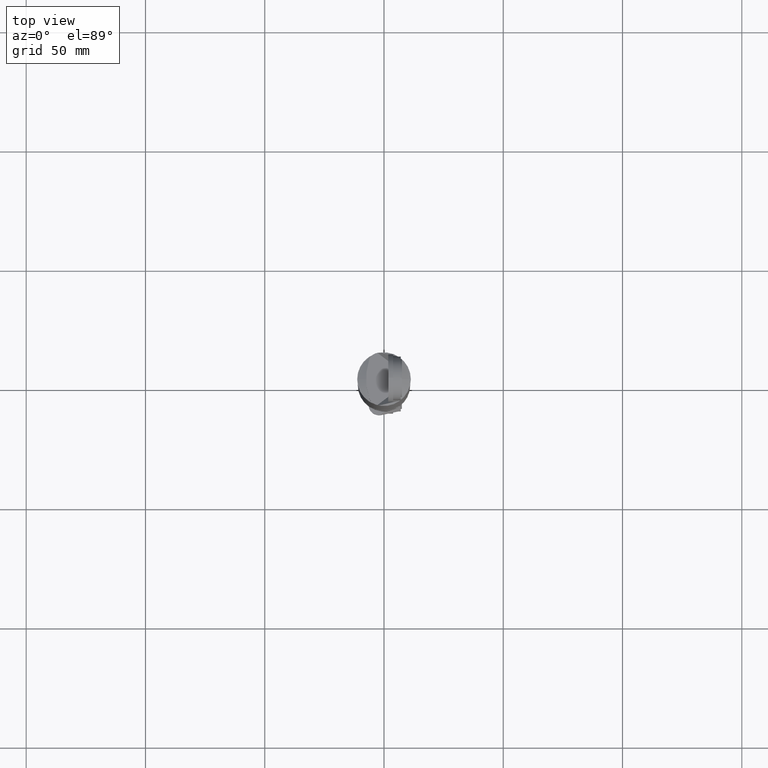
[diagram: clean part render]
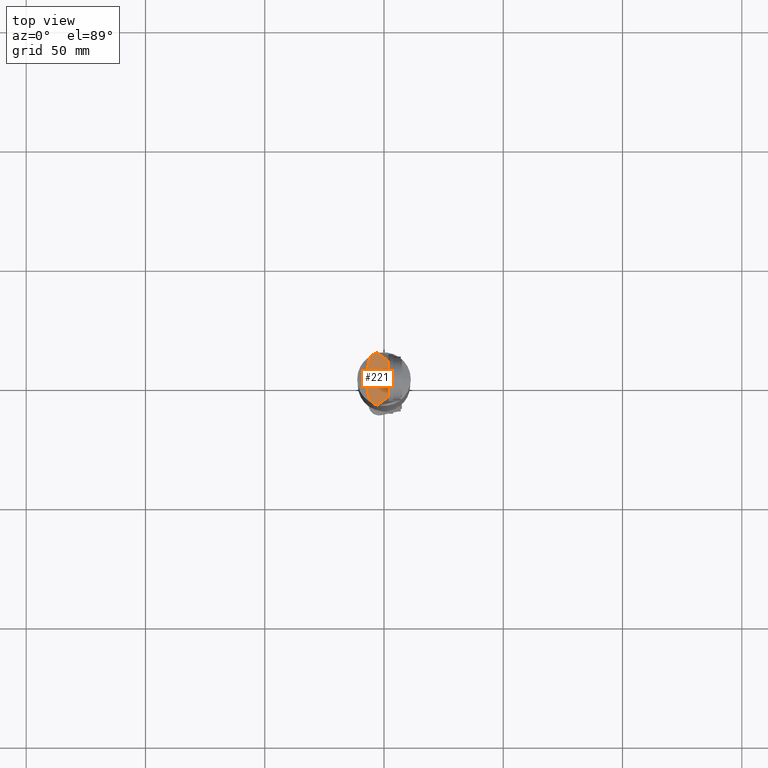
[diagram: same view with one face highlighted and labeled with its STEP entity id]
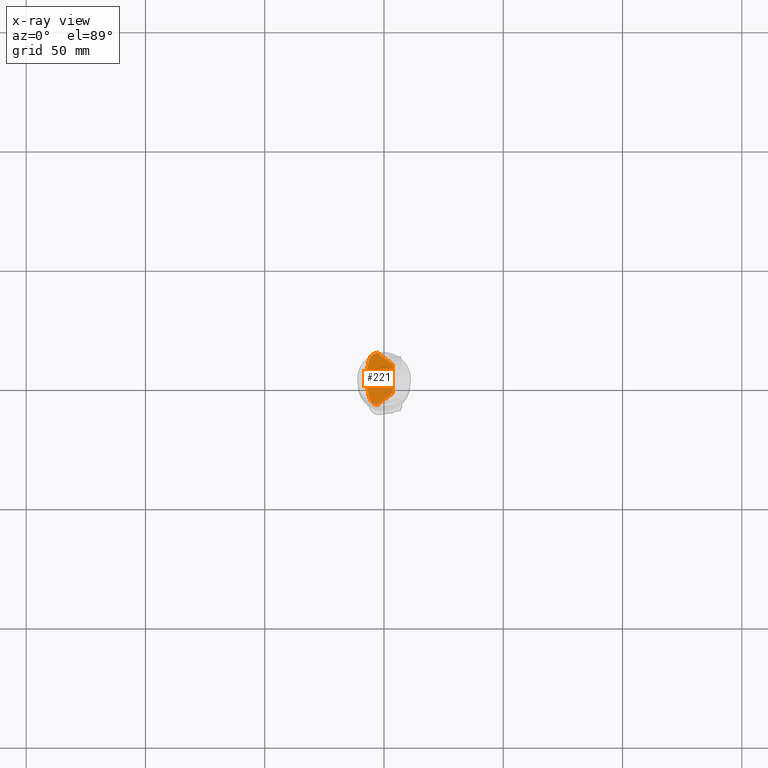
[diagram: x-ray of the same camera — body ghosted, the highlighted face saturated]
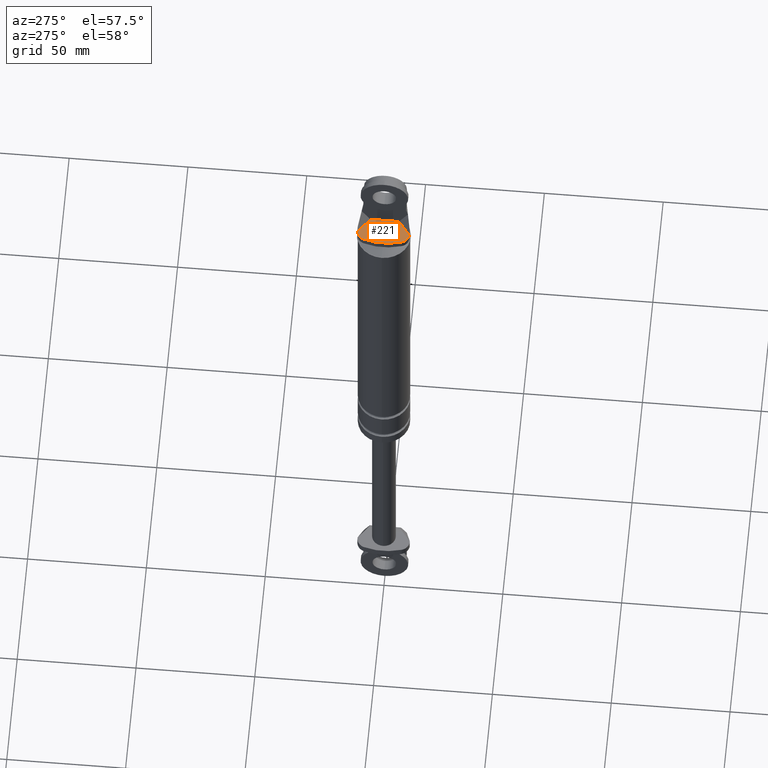
[diagram: same view with one face highlighted and labeled with its STEP entity id]
A machine part, top view. The second image highlights one B-rep face of the part: STEP entity #221.
The next image is the same camera in x-ray: the body ghosted, the highlighted face saturated — about 0% of this face is hidden behind the body in this view.
A second angle (auxiliary view) of the same face is appended — the face is thin or edge-on in the first view.
In plain terms, the highlighted planar face has unit normal (0, 0, -1).
Its self-contained STEP definition (entity closure, byte-faithful):
#221=ADVANCED_FACE('',(#463),#462,.F.);
#462=PLANE('',#1301);
#463=FACE_OUTER_BOUND('',#1302,.T.);
#1298=CARTESIAN_POINT('',(5.05814682001E+000,-1.31363496495E+001,9.21999850000E+001));
#1299=DIRECTION('',(0.00000000000E+000,0.00000000000E+000,-1.00000000000E+000));
#1300=DIRECTION('',(-1.00000000000E+000,0.00000000000E+000,0.00000000000E+000));
#1301=AXIS2_PLACEMENT_3D('',#1298,#1299,#1300);
#1302=EDGE_LOOP('',(#1857,#1858,#1859,#1860,#1861,#1862));
#1857=ORIENTED_EDGE('',*,*,#2230,.F.);
#1858=ORIENTED_EDGE('',*,*,#2229,.F.);
#1859=ORIENTED_EDGE('',*,*,#2231,.F.);
#1860=ORIENTED_EDGE('',*,*,#2223,.F.);
#1861=ORIENTED_EDGE('',*,*,#2232,.F.);
#1862=ORIENTED_EDGE('',*,*,#2233,.F.);
#2223=EDGE_CURVE('',#2664,#2672,#2673,.T.);
#2229=EDGE_CURVE('',#2707,#2693,#2714,.T.);
#2230=EDGE_CURVE('',#2693,#2720,#2721,.T.);
#2231=EDGE_CURVE('',#2672,#2707,#2727,.T.);
#2232=EDGE_CURVE('',#2733,#2664,#2734,.T.);
#2233=EDGE_CURVE('',#2720,#2733,#2740,.T.);
#2664=VERTEX_POINT('',#3895);
#2672=VERTEX_POINT('',#3900);
#2673=LINE('',#3901,#3902);
#2693=VERTEX_POINT('',#3912);
#2707=VERTEX_POINT('',#3920);
#2714=LINE('',#3924,#3925);
#2720=VERTEX_POINT('',#3927);
#2721=CIRCLE('',#3931,4.39713591772E+000);
#2727=LINE('',#3932,#3933);
#2733=VERTEX_POINT('',#3935);
#2734=CIRCLE('',#3939,4.39713591772E+000);
#2740=CIRCLE('',#3943,2.63230550000E+001);
#3895=CARTESIAN_POINT('',(-2.76594820790E+000,1.09469580413E+001,9.21999850000E+001));
#3900=CARTESIAN_POINT('',(3.80000300000E+000,6.00000000000E+000,9.21999850000E+001));
#3901=CARTESIAN_POINT('',(-2.76594820790E+000,1.09469580413E+001,9.21999850000E+001));
#3902=VECTOR('',#3903,8.22095548744E+000);
#3903=DIRECTION('',(7.98684680623E-001,-6.01749766047E-001,0.00000000000E+000));
#3912=CARTESIAN_POINT('',(-2.76594820790E+000,-1.09469580412E+001,9.21999850000E+001));
#3920=CARTESIAN_POINT('',(3.80000300000E+000,-6.00000000000E+000,9.21999850000E+001));
#3924=CARTESIAN_POINT('',(3.80000300000E+000,-6.00000000000E+000,9.21999850000E+001));
#3925=VECTOR('',#3926,8.22095548744E+000);
#3926=DIRECTION('',(-7.98684680623E-001,-6.01749766047E-001,0.00000000000E+000));
#3927=CARTESIAN_POINT('',(-6.27804299844E+000,-7.92703620510E+000,9.21999850000E+001));
#3928=CARTESIAN_POINT('',(-2.08502827535E+000,-6.60286408228E+000,9.21999850000E+001));
#3929=DIRECTION('',(0.00000000000E+000,0.00000000000E+000,-1.00000000000E+000));
#3930=DIRECTION('',(1.00000000000E+000,-0.00000000000E+000,-0.00000000000E+000));
#3931=AXIS2_PLACEMENT_3D('',#3928,#3929,#3930);
#3932=CARTESIAN_POINT('',(3.80000300000E+000,6.00000000000E+000,9.21999850000E+001));
#3933=VECTOR('',#3934,1.20000000000E+001);
#3934=DIRECTION('',(0.00000000000E+000,-1.00000000000E+000,0.00000000000E+000));
#3935=CARTESIAN_POINT('',(-6.27804299844E+000,7.92703620510E+000,9.21999850000E+001));
#3936=CARTESIAN_POINT('',(-2.08502827535E+000,6.60286408228E+000,9.21999850000E+001));
#3937=DIRECTION('',(0.00000000000E+000,0.00000000000E+000,-1.00000000000E+000));
#3938=DIRECTION('',(1.00000000000E+000,-0.00000000000E+000,-0.00000000000E+000));
#3939=AXIS2_PLACEMENT_3D('',#3936,#3937,#3938);
#3940=CARTESIAN_POINT('',(1.88230590000E+001,1.25154769361E-014,9.21999850000E+001));
#3941=DIRECTION('',(0.00000000000E+000,0.00000000000E+000,-1.00000000000E+000));
#3942=DIRECTION('',(1.00000000000E+000,-0.00000000000E+000,-0.00000000000E+000));
#3943=AXIS2_PLACEMENT_3D('',#3940,#3941,#3942);